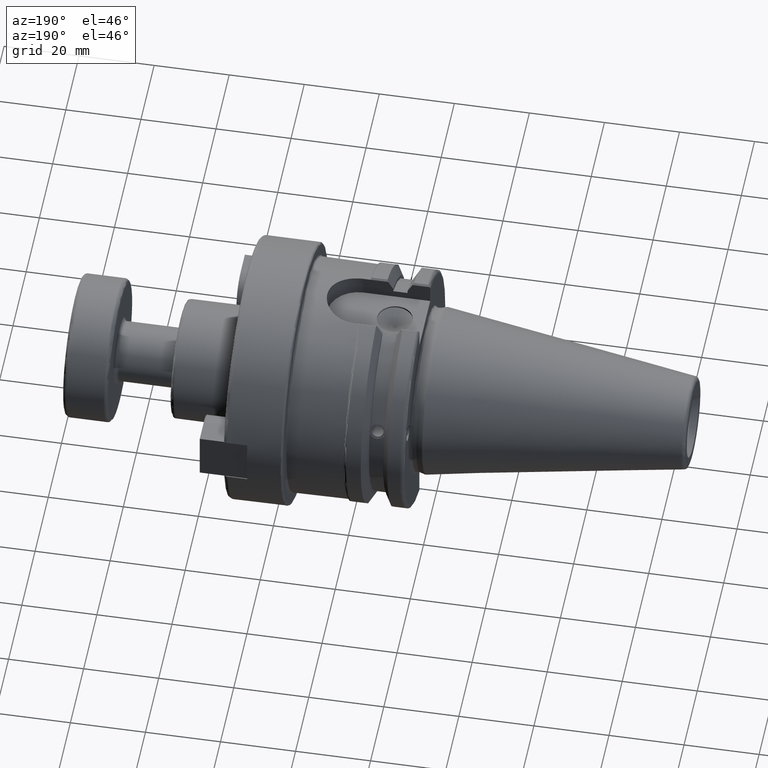
[diagram: clean part render]
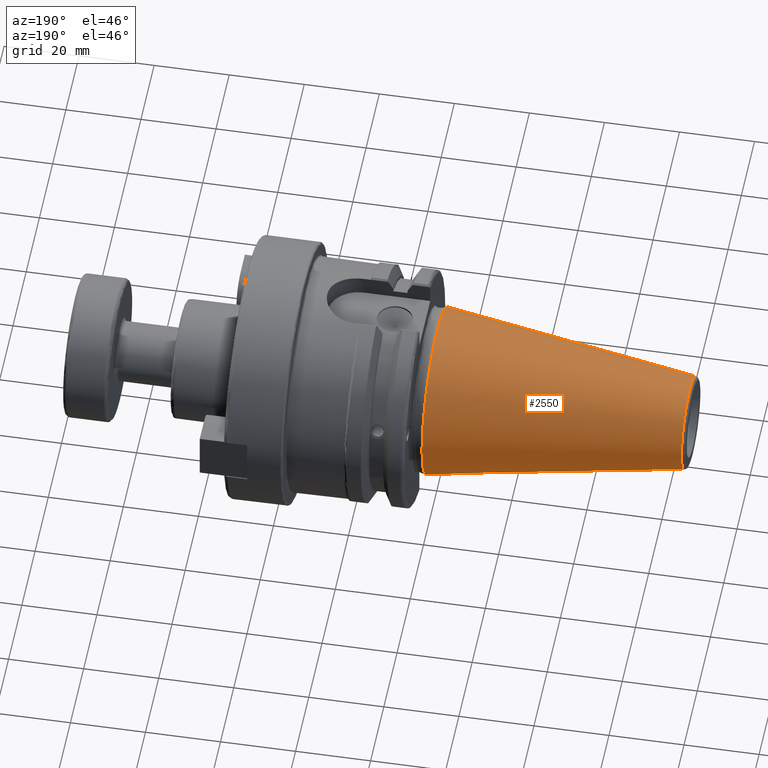
[diagram: same view with one face highlighted and labeled with its STEP entity id]
A machine part, auxiliary view. The second image highlights one B-rep face of the part: STEP entity #2550.
In plain terms, the highlighted conical surface has half-angle 8.297 deg.
Its self-contained STEP definition (entity closure, byte-faithful):
#164=CONICAL_SURFACE('',#2903,17.2484375,0.144812498238939);
#277=CIRCLE('',#2897,12.3966635780937);
#278=CIRCLE('',#2898,12.3966635780937);
#282=CIRCLE('',#2904,22.225);
#412=FACE_OUTER_BOUND('',#577,.T.);
#577=EDGE_LOOP('',(#2075,#2076,#2077,#2078,#2079));
#750=LINE('',#4735,#911);
#911=VECTOR('',#3493,17.2484375);
#1190=VERTEX_POINT('',#4722);
#1191=VERTEX_POINT('',#4723);
#1194=VERTEX_POINT('',#4733);
#1512=EDGE_CURVE('',#1190,#1191,#277,.T.);
#1513=EDGE_CURVE('',#1191,#1190,#278,.T.);
#1517=EDGE_CURVE('',#1194,#1194,#282,.T.);
#1518=EDGE_CURVE('',#1194,#1191,#750,.T.);
#2075=ORIENTED_EDGE('',*,*,#1517,.F.);
#2076=ORIENTED_EDGE('',*,*,#1518,.T.);
#2077=ORIENTED_EDGE('',*,*,#1512,.F.);
#2078=ORIENTED_EDGE('',*,*,#1513,.F.);
#2079=ORIENTED_EDGE('',*,*,#1518,.F.);
#2550=ADVANCED_FACE('',(#412),#164,.T.);
#2897=AXIS2_PLACEMENT_3D('',#4724,#3477,#3478);
#2898=AXIS2_PLACEMENT_3D('',#4725,#3479,#3480);
#2903=AXIS2_PLACEMENT_3D('',#4732,#3489,#3490);
#2904=AXIS2_PLACEMENT_3D('',#4734,#3491,#3492);
#3477=DIRECTION('center_axis',(-1.,0.,0.));
#3478=DIRECTION('ref_axis',(0.,-1.,3.06161699786838E-17));
#3479=DIRECTION('center_axis',(-1.,0.,0.));
#3480=DIRECTION('ref_axis',(0.,-1.,3.06161699786838E-17));
#3489=DIRECTION('center_axis',(1.,0.,0.));
#3490=DIRECTION('ref_axis',(0.,1.,0.));
#3491=DIRECTION('center_axis',(1.,0.,0.));
#3492=DIRECTION('ref_axis',(0.,0.,-1.));
#3493=DIRECTION('',(-0.989532981063282,0.144306893071729,1.76724974695192E-17));
#4722=CARTESIAN_POINT('',(-67.3943068930717,-1.5181534371019E-15,12.3966635780937));
#4723=CARTESIAN_POINT('',(-67.3943068930718,-12.3966635780937,-1.5181534371019E-15));
#4724=CARTESIAN_POINT('Origin',(-67.3943068930717,0.,-1.89769179637738E-15));
#4725=CARTESIAN_POINT('Origin',(-67.3943068930717,0.,-1.89769179637738E-15));
#4732=CARTESIAN_POINT('Origin',(-34.125,0.,0.));
#4733=CARTESIAN_POINT('',(0.,-22.225,-2.72177751110499E-15));
#4734=CARTESIAN_POINT('Origin',(0.,0.,0.));
#4735=CARTESIAN_POINT('',(-34.125,-17.2484375,-2.11232437746682E-15));